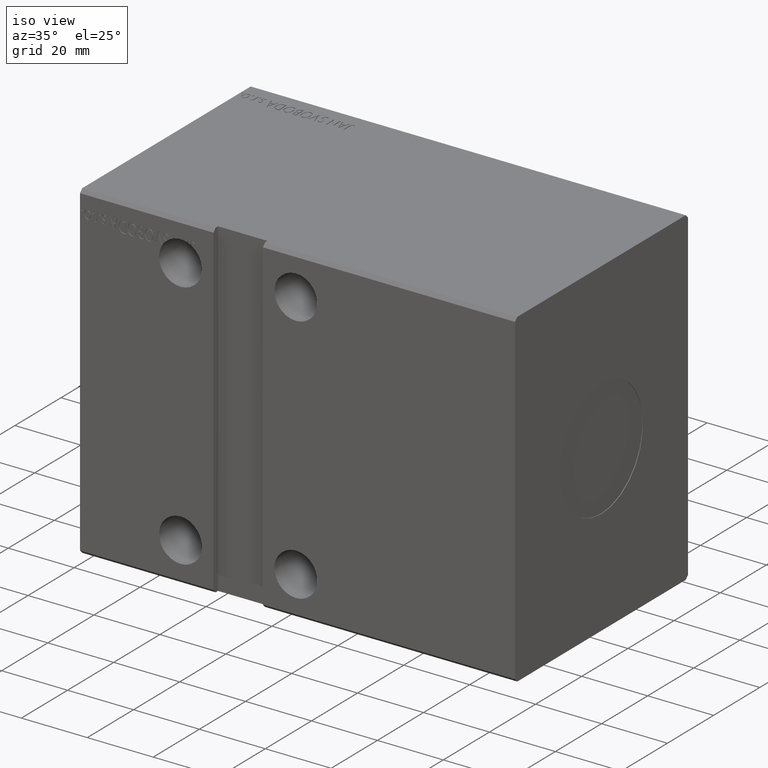
[diagram: clean part render]
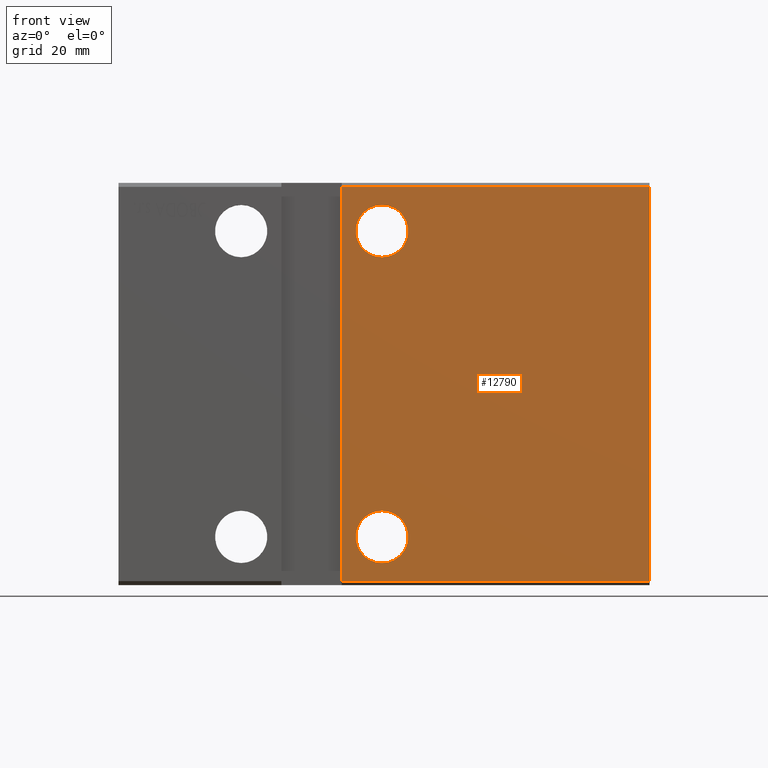
[diagram: tour spotlight — one face highlighted and labeled with its STEP entity id]
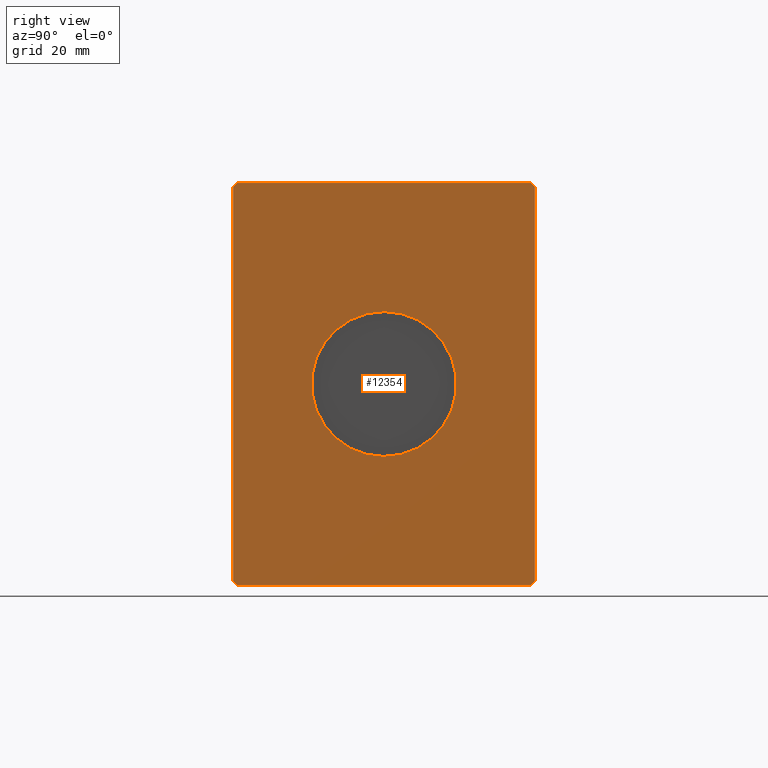
[diagram: tour spotlight — one face highlighted and labeled with its STEP entity id]
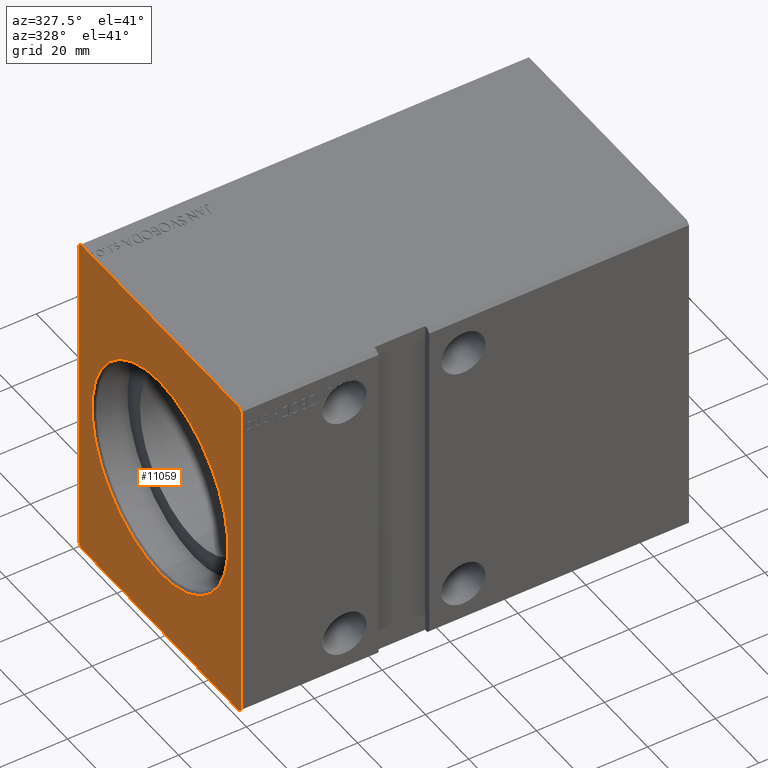
[diagram: tour spotlight — one face highlighted and labeled with its STEP entity id]
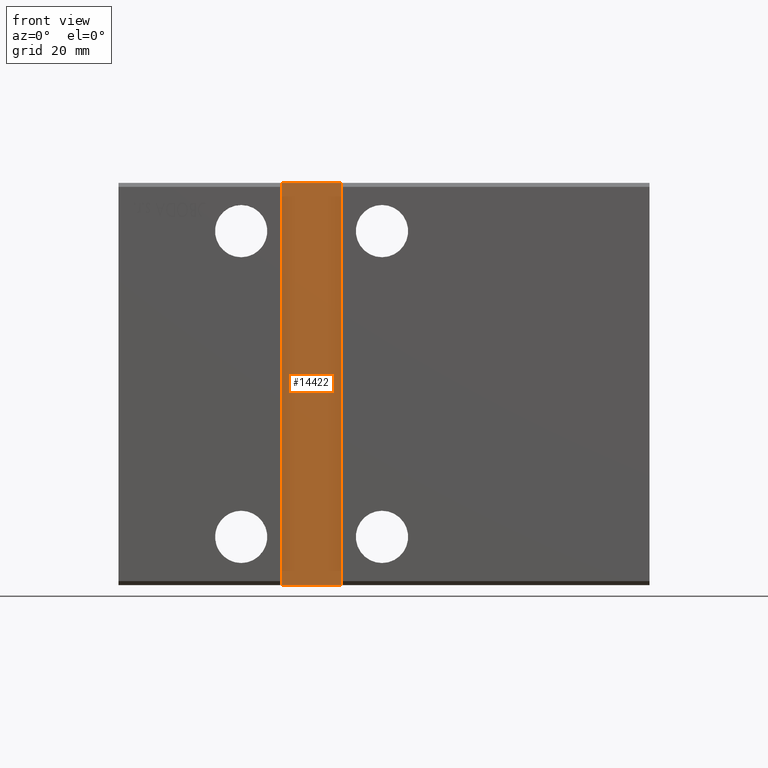
[diagram: tour spotlight — one face highlighted and labeled with its STEP entity id]
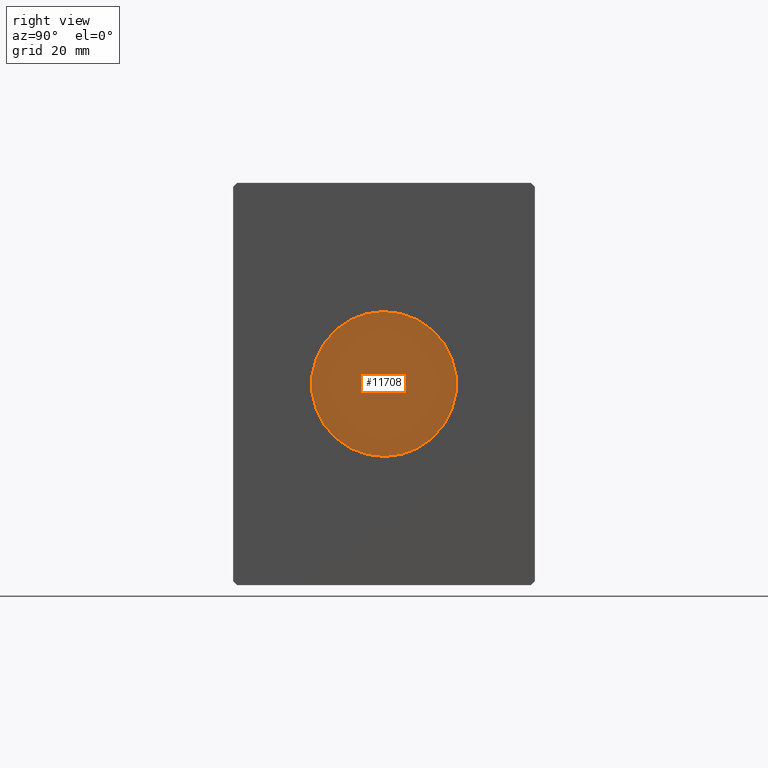
[diagram: tour spotlight — one face highlighted and labeled with its STEP entity id]
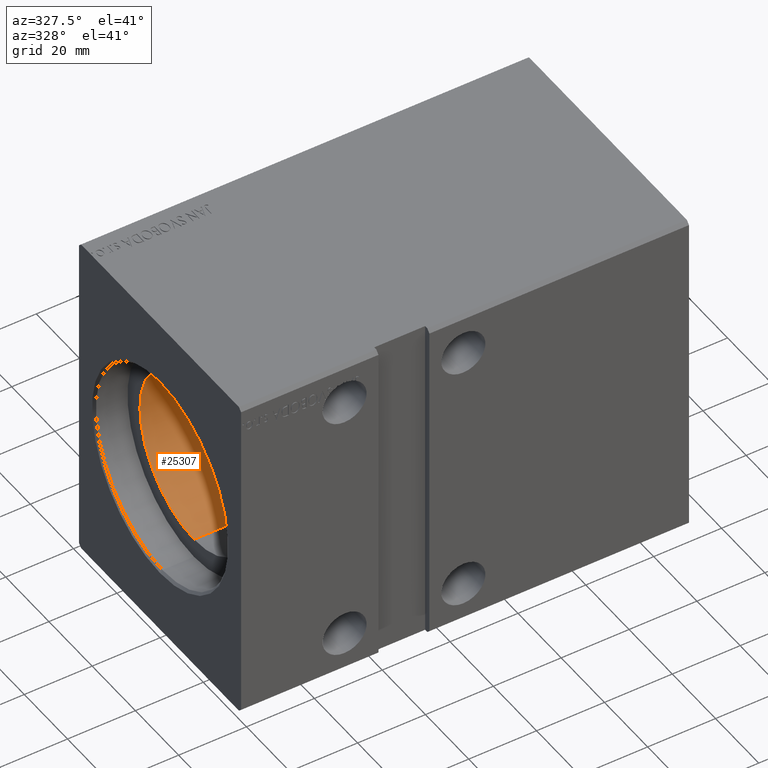
[diagram: tour spotlight — one face highlighted and labeled with its STEP entity id]
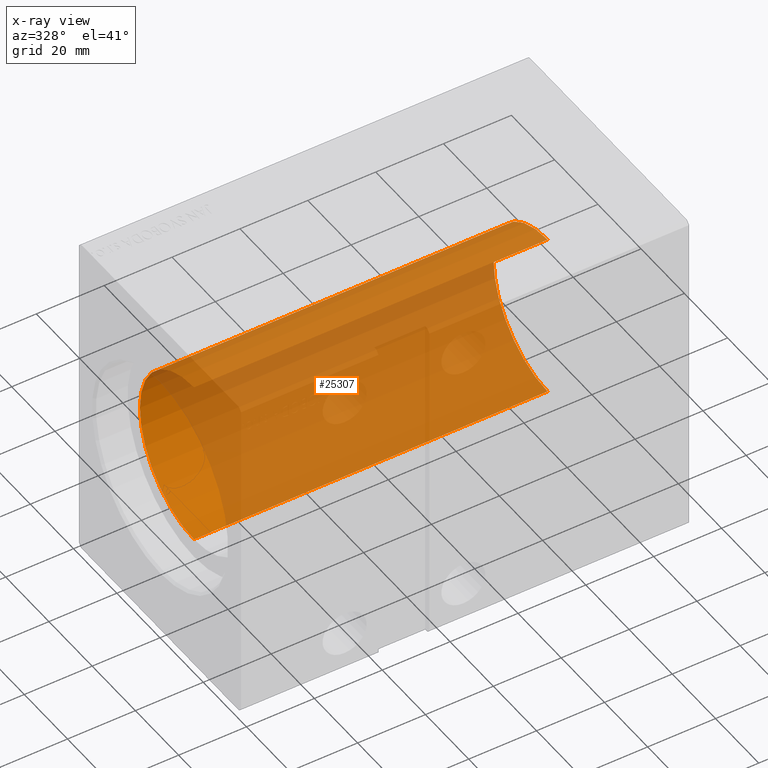
[diagram: x-ray of the same camera — body ghosted, this tour face saturated]
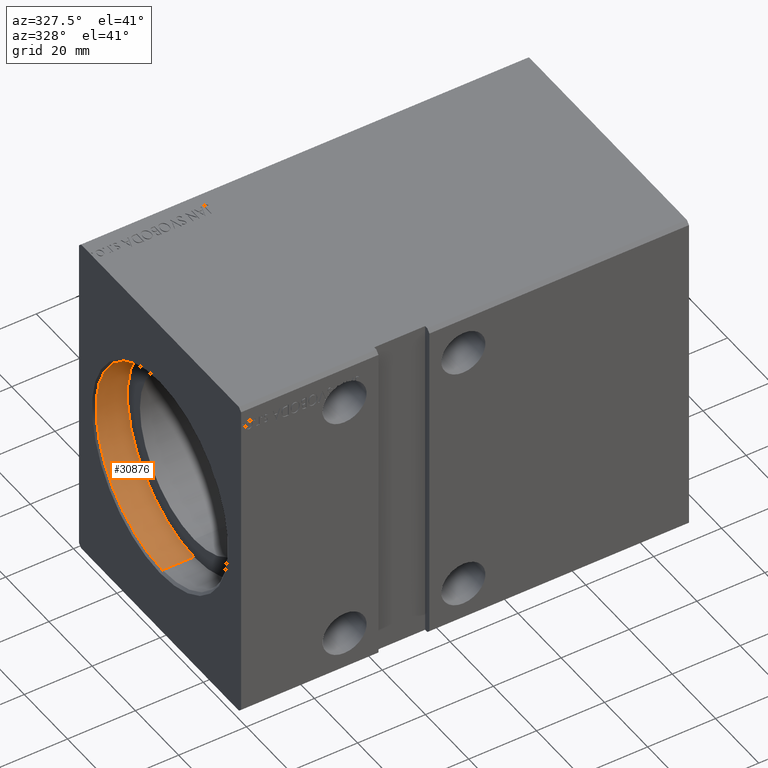
[diagram: tour spotlight — one face highlighted and labeled with its STEP entity id]
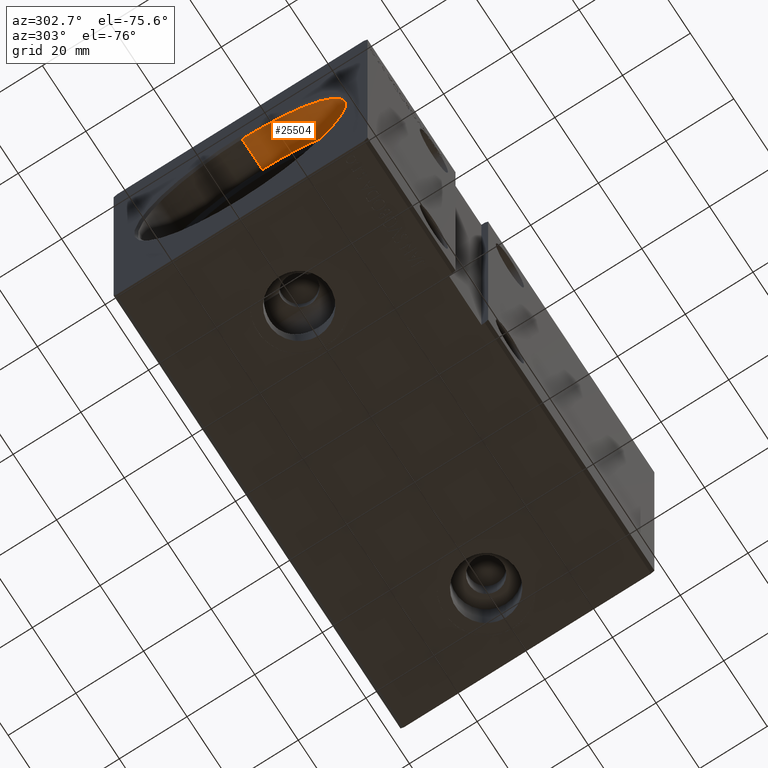
[diagram: tour spotlight — one face highlighted and labeled with its STEP entity id]
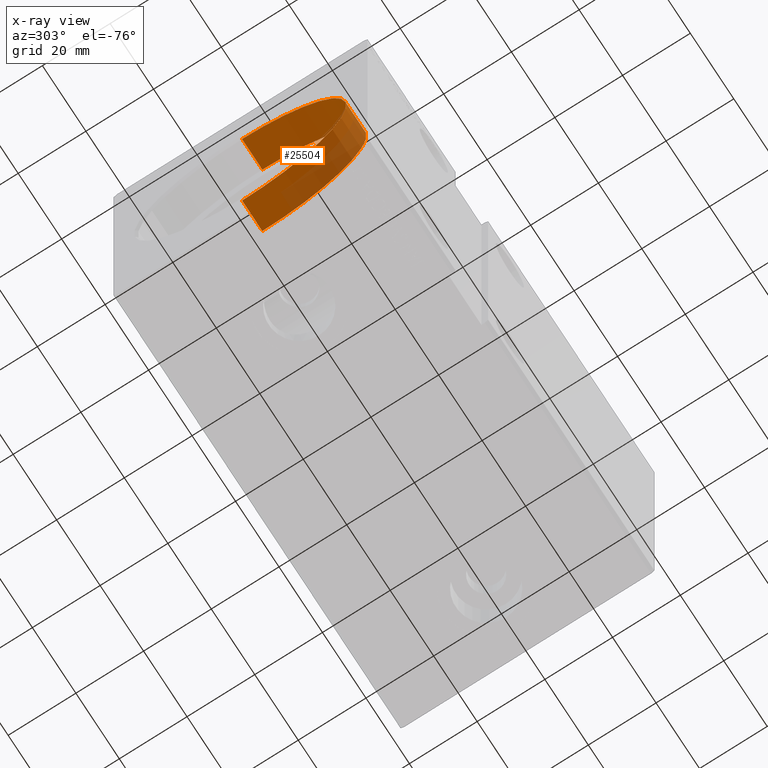
[diagram: x-ray of the same camera — body ghosted, this tour face saturated]
A machine part: a face-by-face anatomy tour. The part has 776 B-rep faces; the first image is the clean iso view, then the 8 largest visible faces are spotlighted one at a time (largest first), each with its STEP entity span.

Face 1 — front view, entity #12790. In plain terms, the highlighted planar face has unit normal (-0, 1, 0).
Definition (entity closure, byte-faithful):
#481 = EDGE_LOOP ( 'NONE', ( #11995, #37718 ) ) ;
#935 = CARTESIAN_POINT ( 'NONE',  ( 65.50000000000000000, -37.50000000000001421, 44.50000000000000000 ) ) ;
#1256 = VERTEX_POINT ( 'NONE', #9411 ) ;
#1307 = VECTOR ( 'NONE', #38826, 1000.000000000000000 ) ;
#1609 = CARTESIAN_POINT ( 'NONE',  ( 65.50000000000001421, -37.50000000000001421, -44.50000000000000000 ) ) ;
#2291 = VERTEX_POINT ( 'NONE', #8137 ) ;
#3689 = CIRCLE ( 'NONE', #18901, 6.499999999999999112 ) ;
#4011 = EDGE_CURVE ( 'NONE', #39150, #32558, #9631, .T. ) ;
#4369 = EDGE_CURVE ( 'NONE', #2291, #1256, #40959, .T. ) ;
#4889 = EDGE_CURVE ( 'NONE', #27155, #14294, #3689, .T. ) ;
#5793 = DIRECTION ( 'NONE',  ( 0.000000000000000000, 0.000000000000000000, 1.000000000000000000 ) ) ;
#6053 = DIRECTION ( 'NONE',  ( 0.000000000000000000, -0.000000000000000000, 1.000000000000000000 ) ) ;
#7204 = AXIS2_PLACEMENT_3D ( 'NONE', #13063, #40883, #6053 ) ;
#7806 = CIRCLE ( 'NONE', #32976, 6.499999999999999112 ) ;
#8137 = CARTESIAN_POINT ( 'NONE',  ( 55.50000000000000711, -37.50000000000001421, -48.99999999999997158 ) ) ;
#9411 = CARTESIAN_POINT ( 'NONE',  ( 55.50000000000000000, -37.50000000000001421, 48.99999999999998579 ) ) ;
#9631 = CIRCLE ( 'NONE', #34796, 6.499999999999999112 ) ;
#11995 = ORIENTED_EDGE ( 'NONE', *, *, #19115, .F. ) ;
#12395 = VERTEX_POINT ( 'NONE', #34147 ) ;
#12460 = FACE_OUTER_BOUND ( 'NONE', #18826, .T. ) ;
#12533 = CIRCLE ( 'NONE', #20496, 6.499999999999999112 ) ;
#12790 = ADVANCED_FACE ( 'NONE', ( #37985, #12460, #34458 ), #25117, .F. ) ;
#12862 = ORIENTED_EDGE ( 'NONE', *, *, #4011, .T. ) ;
#13063 = CARTESIAN_POINT ( 'NONE',  ( 132.0000000000000000, -37.50000000000001421, 48.99999999999998579 ) ) ;
#13825 = EDGE_LOOP ( 'NONE', ( #33306, #12862 ) ) ;
#14294 = VERTEX_POINT ( 'NONE', #34785 ) ;
#14399 = VECTOR ( 'NONE', #18335, 1000.000000000000000 ) ;
#14682 = EDGE_CURVE ( 'NONE', #12395, #1256, #33410, .T. ) ;
#14792 = EDGE_CURVE ( 'NONE', #32558, #39150, #12533, .T. ) ;
#15147 = CARTESIAN_POINT ( 'NONE',  ( 65.50000000000001421, -37.50000000000001421, -38.00000000000000000 ) ) ;
#15834 = ORIENTED_EDGE ( 'NONE', *, *, #38850, .F. ) ;
#15895 = DIRECTION ( 'NONE',  ( 0.000000000000000000, 0.000000000000000000, 1.000000000000000000 ) ) ;
#17148 = VERTEX_POINT ( 'NONE', #19653 ) ;
#18335 = DIRECTION ( 'NONE',  ( 0.000000000000000000, 0.000000000000000000, -1.000000000000000000 ) ) ;
#18599 = CARTESIAN_POINT ( 'NONE',  ( 65.50000000000000000, -37.50000000000001421, 38.00000000000000000 ) ) ;
#18693 = EDGE_CURVE ( 'NONE', #12395, #17148, #31190, .T. ) ;
#18826 = EDGE_LOOP ( 'NONE', ( #20230, #36224, #15834, #22325 ) ) ;
#18901 = AXIS2_PLACEMENT_3D ( 'NONE', #18599, #27729, #15895 ) ;
#19115 = EDGE_CURVE ( 'NONE', #14294, #27155, #7806, .T. ) ;
#19653 = CARTESIAN_POINT ( 'NONE',  ( 132.0000000000000000, -37.50000000000001421, -49.00000000000000000 ) ) ;
#20230 = ORIENTED_EDGE ( 'NONE', *, *, #14682, .T. ) ;
#20496 = AXIS2_PLACEMENT_3D ( 'NONE', #15147, #40461, #24068 ) ;
#22325 = ORIENTED_EDGE ( 'NONE', *, *, #18693, .F. ) ;
#24068 = DIRECTION ( 'NONE',  ( 0.000000000000000000, 0.000000000000000000, 1.000000000000000000 ) ) ;
#24188 = VECTOR ( 'NONE', #29131, 1000.000000000000000 ) ;
#24368 = CARTESIAN_POINT ( 'NONE',  ( 65.50000000000001421, -37.50000000000001421, -31.50000000000000000 ) ) ;
#24679 = DIRECTION ( 'NONE',  ( 0.000000000000000000, 0.000000000000000000, 1.000000000000000000 ) ) ;
#25117 = PLANE ( 'NONE',  #7204 ) ;
#25197 = CARTESIAN_POINT ( 'NONE',  ( 55.50000000000000000, -37.50000000000001421, 49.99999999999998579 ) ) ;
#26167 = CARTESIAN_POINT ( 'NONE',  ( 132.0000000000000000, -37.50000000000001421, 48.99999999999998579 ) ) ;
#27155 = VERTEX_POINT ( 'NONE', #935 ) ;
#27176 = LINE ( 'NONE', #30487, #39259 ) ;
#27664 = CARTESIAN_POINT ( 'NONE',  ( 132.0000000000000000, -37.50000000000001421, 48.99999999999998579 ) ) ;
#27729 = DIRECTION ( 'NONE',  ( 0.000000000000000000, -1.000000000000000000, -0.000000000000000000 ) ) ;
#29131 = DIRECTION ( 'NONE',  ( -6.938893903907229610E-17, -0.000000000000000000, 1.000000000000000000 ) ) ;
#30278 = DIRECTION ( 'NONE',  ( -0.000000000000000000, 1.000000000000000000, 0.000000000000000000 ) ) ;
#30487 = CARTESIAN_POINT ( 'NONE',  ( 132.0000000000000000, -37.50000000000001421, -49.00000000000000000 ) ) ;
#31190 = LINE ( 'NONE', #27664, #14399 ) ;
#32558 = VERTEX_POINT ( 'NONE', #1609 ) ;
#32976 = AXIS2_PLACEMENT_3D ( 'NONE', #40220, #34202, #5793 ) ;
#33306 = ORIENTED_EDGE ( 'NONE', *, *, #14792, .T. ) ;
#33410 = LINE ( 'NONE', #26167, #1307 ) ;
#34147 = CARTESIAN_POINT ( 'NONE',  ( 132.0000000000000000, -37.50000000000001421, 48.99999999999998579 ) ) ;
#34202 = DIRECTION ( 'NONE',  ( 0.000000000000000000, -1.000000000000000000, -0.000000000000000000 ) ) ;
#34458 = FACE_BOUND ( 'NONE', #481, .T. ) ;
#34785 = CARTESIAN_POINT ( 'NONE',  ( 65.50000000000000000, -37.50000000000001421, 31.50000000000000000 ) ) ;
#34796 = AXIS2_PLACEMENT_3D ( 'NONE', #37147, #30278, #24679 ) ;
#36224 = ORIENTED_EDGE ( 'NONE', *, *, #4369, .F. ) ;
#37147 = CARTESIAN_POINT ( 'NONE',  ( 65.50000000000001421, -37.50000000000001421, -38.00000000000000000 ) ) ;
#37718 = ORIENTED_EDGE ( 'NONE', *, *, #4889, .F. ) ;
#37985 = FACE_BOUND ( 'NONE', #13825, .T. ) ;
#38826 = DIRECTION ( 'NONE',  ( -1.000000000000000000, -0.000000000000000000, -0.000000000000000000 ) ) ;
#38850 = EDGE_CURVE ( 'NONE', #17148, #2291, #27176, .T. ) ;
#39150 = VERTEX_POINT ( 'NONE', #24368 ) ;
#39259 = VECTOR ( 'NONE', #39820, 1000.000000000000000 ) ;
#39820 = DIRECTION ( 'NONE',  ( -1.000000000000000000, -0.000000000000000000, -0.000000000000000000 ) ) ;
#40220 = CARTESIAN_POINT ( 'NONE',  ( 65.50000000000000000, -37.50000000000001421, 38.00000000000000000 ) ) ;
#40461 = DIRECTION ( 'NONE',  ( -0.000000000000000000, 1.000000000000000000, 0.000000000000000000 ) ) ;
#40883 = DIRECTION ( 'NONE',  ( -0.000000000000000000, 1.000000000000000000, 0.000000000000000000 ) ) ;
#40959 = LINE ( 'NONE', #25197, #24188 ) ;

Face 2 — right view, entity #12354. In plain terms, the highlighted planar face has unit normal (1, 0, 0).
Definition (entity closure, byte-faithful):
#385 = ORIENTED_EDGE ( 'NONE', *, *, #18693, .T. ) ;
#932 = LINE ( 'NONE', #23302, #28825 ) ;
#939 = EDGE_LOOP ( 'NONE', ( #13505, #27650, #9183, #385, #9852, #3339, #38543, #7194 ) ) ;
#1098 = CARTESIAN_POINT ( 'NONE',  ( 132.0000000000000000, 2.204364238465235428E-15, 18.00000000000000000 ) ) ;
#1334 = DIRECTION ( 'NONE',  ( 0.000000000000000000, 0.7071067811865474617, 0.7071067811865474617 ) ) ;
#2204 = CARTESIAN_POINT ( 'NONE',  ( 132.0000000000000000, 37.50000000000000711, 49.00000000000000000 ) ) ;
#2496 = VERTEX_POINT ( 'NONE', #2204 ) ;
#3339 = ORIENTED_EDGE ( 'NONE', *, *, #14200, .T. ) ;
#3537 = EDGE_CURVE ( 'NONE', #15674, #12395, #932, .T. ) ;
#3726 = CARTESIAN_POINT ( 'NONE',  ( 132.0000000000000000, -36.50000000000000711, -50.00000000000000000 ) ) ;
#4156 = DIRECTION ( 'NONE',  ( 0.000000000000000000, 0.000000000000000000, -1.000000000000000000 ) ) ;
#4920 = DIRECTION ( 'NONE',  ( 1.000000000000000000, 0.000000000000000000, 0.000000000000000000 ) ) ;
#6071 = CARTESIAN_POINT ( 'NONE',  ( 132.0000000000000000, 0.000000000000000000, -18.00000000000000000 ) ) ;
#6256 = EDGE_CURVE ( 'NONE', #23862, #16827, #24104, .T. ) ;
#6289 = CARTESIAN_POINT ( 'NONE',  ( 132.0000000000000000, -36.50000000000001421, 49.99999999999998579 ) ) ;
#6444 = DIRECTION ( 'NONE',  ( 1.000000000000000000, 0.000000000000000000, 0.000000000000000000 ) ) ;
#7194 = ORIENTED_EDGE ( 'NONE', *, *, #31196, .T. ) ;
#8245 = CARTESIAN_POINT ( 'NONE',  ( 132.0000000000000000, -36.50000000000000711, -50.00000000000000000 ) ) ;
#8867 = DIRECTION ( 'NONE',  ( 0.000000000000000000, 1.000000000000000000, 0.000000000000000000 ) ) ;
#9183 = ORIENTED_EDGE ( 'NONE', *, *, #3537, .T. ) ;
#9765 = AXIS2_PLACEMENT_3D ( 'NONE', #31957, #6444, #4156 ) ;
#9852 = ORIENTED_EDGE ( 'NONE', *, *, #33087, .T. ) ;
#10645 = VECTOR ( 'NONE', #13715, 1000.000000000000114 ) ;
#10810 = VERTEX_POINT ( 'NONE', #1098 ) ;
#11100 = EDGE_CURVE ( 'NONE', #2496, #32567, #13261, .T. ) ;
#11796 = VECTOR ( 'NONE', #25927, 1000.000000000000114 ) ;
#12354 = ADVANCED_FACE ( 'NONE', ( #18187, #27521 ), #30210, .T. ) ;
#12395 = VERTEX_POINT ( 'NONE', #34147 ) ;
#13207 = VECTOR ( 'NONE', #8867, 1000.000000000000000 ) ;
#13261 = LINE ( 'NONE', #22812, #11796 ) ;
#13505 = ORIENTED_EDGE ( 'NONE', *, *, #11100, .T. ) ;
#13534 = DIRECTION ( 'NONE',  ( 0.000000000000000000, -1.000000000000000000, -1.901066822988281457E-16 ) ) ;
#13715 = DIRECTION ( 'NONE',  ( 0.000000000000000000, 0.7071067811865500152, -0.7071067811865451302 ) ) ;
#14200 = EDGE_CURVE ( 'NONE', #37825, #23862, #36884, .T. ) ;
#14399 = VECTOR ( 'NONE', #18335, 1000.000000000000000 ) ;
#14435 = DIRECTION ( 'NONE',  ( 0.000000000000000000, 0.000000000000000000, -1.000000000000000000 ) ) ;
#14443 = AXIS2_PLACEMENT_3D ( 'NONE', #14646, #4920, #14435 ) ;
#14646 = CARTESIAN_POINT ( 'NONE',  ( 132.0000000000000000, 0.000000000000000000, 0.000000000000000000 ) ) ;
#15049 = CARTESIAN_POINT ( 'NONE',  ( 132.0000000000000000, 36.50000000000000711, 50.00000000000000000 ) ) ;
#15550 = DIRECTION ( 'NONE',  ( 0.000000000000000000, 0.000000000000000000, 1.000000000000000000 ) ) ;
#15674 = VERTEX_POINT ( 'NONE', #6289 ) ;
#16827 = VERTEX_POINT ( 'NONE', #22616 ) ;
#16901 = EDGE_CURVE ( 'NONE', #10810, #23213, #32279, .T. ) ;
#17148 = VERTEX_POINT ( 'NONE', #19653 ) ;
#17909 = VECTOR ( 'NONE', #15550, 1000.000000000000000 ) ;
#18049 = ORIENTED_EDGE ( 'NONE', *, *, #29981, .F. ) ;
#18187 = FACE_BOUND ( 'NONE', #20734, .T. ) ;
#18335 = DIRECTION ( 'NONE',  ( 0.000000000000000000, 0.000000000000000000, -1.000000000000000000 ) ) ;
#18693 = EDGE_CURVE ( 'NONE', #12395, #17148, #31190, .T. ) ;
#19356 = CARTESIAN_POINT ( 'NONE',  ( 132.0000000000000000, -37.50000000000001421, -49.00000000000000000 ) ) ;
#19653 = CARTESIAN_POINT ( 'NONE',  ( 132.0000000000000000, -37.50000000000001421, -49.00000000000000000 ) ) ;
#20734 = EDGE_LOOP ( 'NONE', ( #18049, #28648 ) ) ;
#22616 = CARTESIAN_POINT ( 'NONE',  ( 132.0000000000000000, 37.50000000000000711, -49.00000000000000000 ) ) ;
#22812 = CARTESIAN_POINT ( 'NONE',  ( 132.0000000000000000, 37.50000000000000711, 49.00000000000000000 ) ) ;
#23213 = VERTEX_POINT ( 'NONE', #6071 ) ;
#23302 = CARTESIAN_POINT ( 'NONE',  ( 132.0000000000000000, -36.50000000000001421, 49.99999999999998579 ) ) ;
#23862 = VERTEX_POINT ( 'NONE', #34441 ) ;
#24104 = LINE ( 'NONE', #29725, #25862 ) ;
#25305 = LINE ( 'NONE', #31733, #17909 ) ;
#25862 = VECTOR ( 'NONE', #1334, 1000.000000000000114 ) ;
#25927 = DIRECTION ( 'NONE',  ( 0.000000000000000000, -0.7071067811865474617, 0.7071067811865474617 ) ) ;
#27521 = FACE_OUTER_BOUND ( 'NONE', #939, .T. ) ;
#27650 = ORIENTED_EDGE ( 'NONE', *, *, #36716, .T. ) ;
#27664 = CARTESIAN_POINT ( 'NONE',  ( 132.0000000000000000, -37.50000000000001421, 48.99999999999998579 ) ) ;
#28648 = ORIENTED_EDGE ( 'NONE', *, *, #16901, .F. ) ;
#28825 = VECTOR ( 'NONE', #39076, 1000.000000000000114 ) ;
#29132 = CIRCLE ( 'NONE', #40416, 18.00000000000000000 ) ;
#29725 = CARTESIAN_POINT ( 'NONE',  ( 132.0000000000000000, 36.50000000000000711, -50.00000000000000000 ) ) ;
#29981 = EDGE_CURVE ( 'NONE', #23213, #10810, #29132, .T. ) ;
#30210 = PLANE ( 'NONE',  #14443 ) ;
#30575 = VECTOR ( 'NONE', #13534, 1000.000000000000000 ) ;
#30844 = DIRECTION ( 'NONE',  ( 1.000000000000000000, 0.000000000000000000, 0.000000000000000000 ) ) ;
#31190 = LINE ( 'NONE', #27664, #14399 ) ;
#31196 = EDGE_CURVE ( 'NONE', #16827, #2496, #25305, .T. ) ;
#31261 = DIRECTION ( 'NONE',  ( 0.000000000000000000, 0.000000000000000000, -1.000000000000000000 ) ) ;
#31733 = CARTESIAN_POINT ( 'NONE',  ( 132.0000000000000000, 37.50000000000000711, -49.00000000000000000 ) ) ;
#31957 = CARTESIAN_POINT ( 'NONE',  ( 132.0000000000000000, 0.000000000000000000, 0.000000000000000000 ) ) ;
#32279 = CIRCLE ( 'NONE', #9765, 18.00000000000000000 ) ;
#32407 = LINE ( 'NONE', #19356, #10645 ) ;
#32567 = VERTEX_POINT ( 'NONE', #15049 ) ;
#33087 = EDGE_CURVE ( 'NONE', #17148, #37825, #32407, .T. ) ;
#34147 = CARTESIAN_POINT ( 'NONE',  ( 132.0000000000000000, -37.50000000000001421, 48.99999999999998579 ) ) ;
#34441 = CARTESIAN_POINT ( 'NONE',  ( 132.0000000000000000, 36.50000000000000711, -50.00000000000000000 ) ) ;
#36716 = EDGE_CURVE ( 'NONE', #32567, #15674, #39662, .T. ) ;
#36884 = LINE ( 'NONE', #8245, #13207 ) ;
#37490 = CARTESIAN_POINT ( 'NONE',  ( 132.0000000000000000, 0.000000000000000000, 0.000000000000000000 ) ) ;
#37825 = VERTEX_POINT ( 'NONE', #3726 ) ;
#38543 = ORIENTED_EDGE ( 'NONE', *, *, #6256, .T. ) ;
#38856 = CARTESIAN_POINT ( 'NONE',  ( 132.0000000000000000, 36.50000000000000711, 50.00000000000000000 ) ) ;
#39076 = DIRECTION ( 'NONE',  ( 0.000000000000000000, -0.7071067811865474617, -0.7071067811865474617 ) ) ;
#39662 = LINE ( 'NONE', #38856, #30575 ) ;
#40416 = AXIS2_PLACEMENT_3D ( 'NONE', #37490, #30844, #31261 ) ;

Face 3 — auxiliary view, entity #11059. In plain terms, the highlighted planar face has unit normal (1, 0, 0).
Definition (entity closure, byte-faithful):
#23 = VERTEX_POINT ( 'NONE', #19361 ) ;
#111 = LINE ( 'NONE', #9619, #25500 ) ;
#239 = FACE_BOUND ( 'NONE', #8836, .T. ) ;
#423 = CARTESIAN_POINT ( 'NONE',  ( 0.000000000000000000, 36.50000000000000711, 50.00000000000000000 ) ) ;
#623 = CARTESIAN_POINT ( 'NONE',  ( 0.000000000000000000, 37.50000000000000711, 49.00000000000000000 ) ) ;
#1092 = VERTEX_POINT ( 'NONE', #7760 ) ;
#1500 = AXIS2_PLACEMENT_3D ( 'NONE', #28621, #15961, #38159 ) ;
#1864 = DIRECTION ( 'NONE',  ( 1.000000000000000000, 0.000000000000000000, 0.000000000000000000 ) ) ;
#2292 = LINE ( 'NONE', #11588, #17775 ) ;
#2702 = EDGE_CURVE ( 'NONE', #1092, #21179, #111, .T. ) ;
#3629 = CARTESIAN_POINT ( 'NONE',  ( 0.000000000000000000, 37.50000000000000711, -49.00000000000000000 ) ) ;
#4035 = DIRECTION ( 'NONE',  ( 0.000000000000000000, 0.000000000000000000, 1.000000000000000000 ) ) ;
#4719 = ORIENTED_EDGE ( 'NONE', *, *, #39216, .F. ) ;
#4743 = VECTOR ( 'NONE', #35226, 1000.000000000000114 ) ;
#6445 = DIRECTION ( 'NONE',  ( 0.000000000000000000, 1.000000000000000000, 0.000000000000000000 ) ) ;
#6670 = ORIENTED_EDGE ( 'NONE', *, *, #12067, .F. ) ;
#7139 = AXIS2_PLACEMENT_3D ( 'NONE', #17406, #1864, #26944 ) ;
#7760 = CARTESIAN_POINT ( 'NONE',  ( 0.000000000000000000, -37.50000000000001421, -49.00000000000000000 ) ) ;
#8080 = VERTEX_POINT ( 'NONE', #19568 ) ;
#8585 = CARTESIAN_POINT ( 'NONE',  ( 0.000000000000000000, -36.50000000000000711, -50.00000000000000000 ) ) ;
#8836 = EDGE_LOOP ( 'NONE', ( #24918, #25359 ) ) ;
#8961 = DIRECTION ( 'NONE',  ( 0.000000000000000000, -0.7071067811865474617, -0.7071067811865474617 ) ) ;
#9165 = CARTESIAN_POINT ( 'NONE',  ( 0.000000000000000000, -36.50000000000001421, 49.99999999999998579 ) ) ;
#9619 = CARTESIAN_POINT ( 'NONE',  ( 0.000000000000000000, -37.50000000000001421, -49.00000000000000000 ) ) ;
#10326 = DIRECTION ( 'NONE',  ( 0.000000000000000000, -0.7071067811865474617, 0.7071067811865474617 ) ) ;
#10746 = LINE ( 'NONE', #623, #35289 ) ;
#11059 = ADVANCED_FACE ( 'NONE', ( #239, #40869 ), #31955, .F. ) ;
#11172 = VECTOR ( 'NONE', #32545, 1000.000000000000000 ) ;
#11411 = CIRCLE ( 'NONE', #1500, 31.45000000000003482 ) ;
#11588 = CARTESIAN_POINT ( 'NONE',  ( 0.000000000000000000, -37.50000000000001421, 48.99999999999998579 ) ) ;
#11858 = CARTESIAN_POINT ( 'NONE',  ( 0.000000000000000000, -37.50000000000001421, 48.99999999999998579 ) ) ;
#12067 = EDGE_CURVE ( 'NONE', #12706, #1092, #2292, .T. ) ;
#12443 = DIRECTION ( 'NONE',  ( 0.000000000000000000, 0.000000000000000000, -1.000000000000000000 ) ) ;
#12706 = VERTEX_POINT ( 'NONE', #11858 ) ;
#12739 = CARTESIAN_POINT ( 'NONE',  ( -1.084202172485504434E-16, 0.000000000000000000, 31.45000000000003482 ) ) ;
#13226 = LINE ( 'NONE', #26290, #4743 ) ;
#13350 = LINE ( 'NONE', #3629, #14075 ) ;
#14075 = VECTOR ( 'NONE', #4035, 1000.000000000000000 ) ;
#14850 = EDGE_LOOP ( 'NONE', ( #22215, #4719, #25264, #40682, #18635, #6670, #39334, #33731 ) ) ;
#15961 = DIRECTION ( 'NONE',  ( 1.000000000000000000, 0.000000000000000000, 0.000000000000000000 ) ) ;
#16365 = LINE ( 'NONE', #423, #11172 ) ;
#16870 = CARTESIAN_POINT ( 'NONE',  ( 0.000000000000000000, 36.50000000000000711, -50.00000000000000000 ) ) ;
#17406 = CARTESIAN_POINT ( 'NONE',  ( 0.000000000000000000, 0.000000000000000000, 0.000000000000000000 ) ) ;
#17775 = VECTOR ( 'NONE', #20726, 1000.000000000000000 ) ;
#18449 = EDGE_CURVE ( 'NONE', #23, #39246, #19719, .T. ) ;
#18635 = ORIENTED_EDGE ( 'NONE', *, *, #2702, .F. ) ;
#19361 = CARTESIAN_POINT ( 'NONE',  ( -1.084202172485504434E-16, 3.851514183318429560E-15, -31.45000000000003482 ) ) ;
#19568 = CARTESIAN_POINT ( 'NONE',  ( 0.000000000000000000, 37.50000000000000711, -49.00000000000000000 ) ) ;
#19719 = CIRCLE ( 'NONE', #7139, 31.45000000000003482 ) ;
#20038 = VERTEX_POINT ( 'NONE', #21153 ) ;
#20406 = AXIS2_PLACEMENT_3D ( 'NONE', #37364, #24698, #12443 ) ;
#20726 = DIRECTION ( 'NONE',  ( 0.000000000000000000, 0.000000000000000000, -1.000000000000000000 ) ) ;
#21153 = CARTESIAN_POINT ( 'NONE',  ( 0.000000000000000000, -36.50000000000001421, 49.99999999999998579 ) ) ;
#21179 = VERTEX_POINT ( 'NONE', #8585 ) ;
#21800 = CARTESIAN_POINT ( 'NONE',  ( 0.000000000000000000, 37.50000000000000711, 49.00000000000000000 ) ) ;
#22215 = ORIENTED_EDGE ( 'NONE', *, *, #39012, .F. ) ;
#22276 = DIRECTION ( 'NONE',  ( 0.000000000000000000, 0.7071067811865500152, -0.7071067811865451302 ) ) ;
#24471 = EDGE_CURVE ( 'NONE', #21179, #26278, #37976, .T. ) ;
#24698 = DIRECTION ( 'NONE',  ( 1.000000000000000000, 0.000000000000000000, 0.000000000000000000 ) ) ;
#24918 = ORIENTED_EDGE ( 'NONE', *, *, #37826, .T. ) ;
#25107 = CARTESIAN_POINT ( 'NONE',  ( 0.000000000000000000, -36.50000000000000711, -50.00000000000000000 ) ) ;
#25264 = ORIENTED_EDGE ( 'NONE', *, *, #34576, .F. ) ;
#25359 = ORIENTED_EDGE ( 'NONE', *, *, #18449, .T. ) ;
#25500 = VECTOR ( 'NONE', #22276, 1000.000000000000114 ) ;
#26278 = VERTEX_POINT ( 'NONE', #16870 ) ;
#26290 = CARTESIAN_POINT ( 'NONE',  ( 0.000000000000000000, 36.50000000000000711, -50.00000000000000000 ) ) ;
#26944 = DIRECTION ( 'NONE',  ( 0.000000000000000000, 0.000000000000000000, -1.000000000000000000 ) ) ;
#27324 = EDGE_CURVE ( 'NONE', #20038, #12706, #31169, .T. ) ;
#27709 = VECTOR ( 'NONE', #6445, 1000.000000000000000 ) ;
#27880 = EDGE_CURVE ( 'NONE', #32495, #20038, #16365, .T. ) ;
#28621 = CARTESIAN_POINT ( 'NONE',  ( 0.000000000000000000, 0.000000000000000000, 0.000000000000000000 ) ) ;
#28681 = VERTEX_POINT ( 'NONE', #21800 ) ;
#29592 = CARTESIAN_POINT ( 'NONE',  ( 0.000000000000000000, 36.50000000000000711, 50.00000000000000000 ) ) ;
#30396 = VECTOR ( 'NONE', #8961, 1000.000000000000114 ) ;
#31169 = LINE ( 'NONE', #9165, #30396 ) ;
#31955 = PLANE ( 'NONE',  #20406 ) ;
#32495 = VERTEX_POINT ( 'NONE', #29592 ) ;
#32545 = DIRECTION ( 'NONE',  ( 0.000000000000000000, -1.000000000000000000, -1.901066822988281457E-16 ) ) ;
#33731 = ORIENTED_EDGE ( 'NONE', *, *, #27880, .F. ) ;
#34576 = EDGE_CURVE ( 'NONE', #26278, #8080, #13226, .T. ) ;
#35226 = DIRECTION ( 'NONE',  ( 0.000000000000000000, 0.7071067811865474617, 0.7071067811865474617 ) ) ;
#35289 = VECTOR ( 'NONE', #10326, 1000.000000000000114 ) ;
#37364 = CARTESIAN_POINT ( 'NONE',  ( 0.000000000000000000, 0.000000000000000000, 0.000000000000000000 ) ) ;
#37826 = EDGE_CURVE ( 'NONE', #39246, #23, #11411, .T. ) ;
#37976 = LINE ( 'NONE', #25107, #27709 ) ;
#38159 = DIRECTION ( 'NONE',  ( 0.000000000000000000, 0.000000000000000000, -1.000000000000000000 ) ) ;
#39012 = EDGE_CURVE ( 'NONE', #28681, #32495, #10746, .T. ) ;
#39216 = EDGE_CURVE ( 'NONE', #8080, #28681, #13350, .T. ) ;
#39246 = VERTEX_POINT ( 'NONE', #12739 ) ;
#39334 = ORIENTED_EDGE ( 'NONE', *, *, #27324, .F. ) ;
#40682 = ORIENTED_EDGE ( 'NONE', *, *, #24471, .F. ) ;
#40869 = FACE_OUTER_BOUND ( 'NONE', #14850, .T. ) ;

Face 4 — front view, entity #14422. In plain terms, the highlighted planar face has unit normal (0, -1, 0).
Definition (entity closure, byte-faithful):
#988 = ORIENTED_EDGE ( 'NONE', *, *, #6550, .T. ) ;
#1364 = ORIENTED_EDGE ( 'NONE', *, *, #37568, .T. ) ;
#2532 = EDGE_LOOP ( 'NONE', ( #1364, #37005, #19842, #988 ) ) ;
#2972 = PLANE ( 'NONE',  #8563 ) ;
#4813 = VERTEX_POINT ( 'NONE', #13481 ) ;
#6062 = VECTOR ( 'NONE', #6387, 1000.000000000000000 ) ;
#6387 = DIRECTION ( 'NONE',  ( -1.000000000000000000, -0.000000000000000000, -0.000000000000000000 ) ) ;
#6550 = EDGE_CURVE ( 'NONE', #40616, #8895, #39415, .T. ) ;
#6886 = CARTESIAN_POINT ( 'NONE',  ( 55.50000000000000000, -35.50000000000001421, 49.99999999999998579 ) ) ;
#7294 = VECTOR ( 'NONE', #24054, 1000.000000000000000 ) ;
#8563 = AXIS2_PLACEMENT_3D ( 'NONE', #30395, #9172, #17964 ) ;
#8611 = DIRECTION ( 'NONE',  ( 2.081668171172169006E-16, 0.000000000000000000, -1.000000000000000000 ) ) ;
#8895 = VERTEX_POINT ( 'NONE', #13347 ) ;
#9172 = DIRECTION ( 'NONE',  ( 0.000000000000000000, -1.000000000000000000, 0.000000000000000000 ) ) ;
#9409 = VECTOR ( 'NONE', #22839, 1000.000000000000000 ) ;
#9488 = CARTESIAN_POINT ( 'NONE',  ( 40.50000000000000000, -35.50000000000001421, 49.99999999999998579 ) ) ;
#10063 = EDGE_CURVE ( 'NONE', #4813, #23982, #13408, .T. ) ;
#13347 = CARTESIAN_POINT ( 'NONE',  ( 55.50000000000000711, -35.50000000000001421, -50.00000000000000000 ) ) ;
#13389 = EDGE_CURVE ( 'NONE', #23982, #40616, #18158, .T. ) ;
#13408 = LINE ( 'NONE', #9488, #6062 ) ;
#13481 = CARTESIAN_POINT ( 'NONE',  ( 55.50000000000000000, -35.50000000000001421, 49.99999999999998579 ) ) ;
#14422 = ADVANCED_FACE ( 'NONE', ( #37048 ), #2972, .T. ) ;
#14718 = CARTESIAN_POINT ( 'NONE',  ( 40.50000000000002132, -35.50000000000001421, -50.00000000000000000 ) ) ;
#17964 = DIRECTION ( 'NONE',  ( 0.000000000000000000, -0.000000000000000000, -1.000000000000000000 ) ) ;
#18158 = LINE ( 'NONE', #27493, #40349 ) ;
#18632 = CARTESIAN_POINT ( 'NONE',  ( 40.50000000000000000, -35.50000000000001421, 49.99999999999998579 ) ) ;
#19842 = ORIENTED_EDGE ( 'NONE', *, *, #13389, .T. ) ;
#22839 = DIRECTION ( 'NONE',  ( -6.938893903907229610E-17, -0.000000000000000000, 1.000000000000000000 ) ) ;
#23982 = VERTEX_POINT ( 'NONE', #18632 ) ;
#24054 = DIRECTION ( 'NONE',  ( 1.000000000000000000, 0.000000000000000000, 0.000000000000000000 ) ) ;
#25919 = CARTESIAN_POINT ( 'NONE',  ( 40.50000000000002132, -35.50000000000001421, -50.00000000000000000 ) ) ;
#27493 = CARTESIAN_POINT ( 'NONE',  ( 40.50000000000000000, -35.50000000000001421, 49.99999999999998579 ) ) ;
#30395 = CARTESIAN_POINT ( 'NONE',  ( 0.000000000000000000, -35.50000000000001421, 1.101411730778925047E-16 ) ) ;
#34676 = LINE ( 'NONE', #6886, #9409 ) ;
#37005 = ORIENTED_EDGE ( 'NONE', *, *, #10063, .T. ) ;
#37048 = FACE_OUTER_BOUND ( 'NONE', #2532, .T. ) ;
#37568 = EDGE_CURVE ( 'NONE', #8895, #4813, #34676, .T. ) ;
#39415 = LINE ( 'NONE', #14718, #7294 ) ;
#40349 = VECTOR ( 'NONE', #8611, 1000.000000000000000 ) ;
#40616 = VERTEX_POINT ( 'NONE', #25919 ) ;

Face 5 — right view, entity #11708. In plain terms, the highlighted planar face has unit normal (1, 0, 0).
Definition (entity closure, byte-faithful):
#644 = EDGE_LOOP ( 'NONE', ( #21442, #36510 ) ) ;
#1742 = CARTESIAN_POINT ( 'NONE',  ( 131.8000000000000114, 0.000000000000000000, 0.000000000000000000 ) ) ;
#2347 = CIRCLE ( 'NONE', #32141, 18.00000000000000000 ) ;
#3581 = EDGE_CURVE ( 'NONE', #10782, #19247, #2347, .T. ) ;
#4206 = PLANE ( 'NONE',  #13765 ) ;
#5929 = AXIS2_PLACEMENT_3D ( 'NONE', #19921, #38601, #7063 ) ;
#6410 = CARTESIAN_POINT ( 'NONE',  ( 131.8000000000000114, 0.000000000000000000, -18.00000000000000000 ) ) ;
#6612 = CIRCLE ( 'NONE', #5929, 18.00000000000000000 ) ;
#7063 = DIRECTION ( 'NONE',  ( 0.000000000000000000, 0.000000000000000000, -1.000000000000000000 ) ) ;
#10427 = DIRECTION ( 'NONE',  ( 0.000000000000000000, 0.000000000000000000, -1.000000000000000000 ) ) ;
#10782 = VERTEX_POINT ( 'NONE', #31180 ) ;
#11708 = ADVANCED_FACE ( 'NONE', ( #19966 ), #4206, .T. ) ;
#13765 = AXIS2_PLACEMENT_3D ( 'NONE', #32613, #39249, #29494 ) ;
#19247 = VERTEX_POINT ( 'NONE', #6410 ) ;
#19921 = CARTESIAN_POINT ( 'NONE',  ( 131.8000000000000114, 0.000000000000000000, 0.000000000000000000 ) ) ;
#19966 = FACE_OUTER_BOUND ( 'NONE', #644, .T. ) ;
#21442 = ORIENTED_EDGE ( 'NONE', *, *, #28839, .T. ) ;
#28839 = EDGE_CURVE ( 'NONE', #19247, #10782, #6612, .T. ) ;
#29494 = DIRECTION ( 'NONE',  ( 0.000000000000000000, 0.000000000000000000, -1.000000000000000000 ) ) ;
#31180 = CARTESIAN_POINT ( 'NONE',  ( 131.8000000000000114, 2.204364238465235428E-15, 18.00000000000000000 ) ) ;
#32141 = AXIS2_PLACEMENT_3D ( 'NONE', #1742, #39474, #10427 ) ;
#32613 = CARTESIAN_POINT ( 'NONE',  ( 131.8000000000000114, 0.000000000000000000, 0.000000000000000000 ) ) ;
#36510 = ORIENTED_EDGE ( 'NONE', *, *, #3581, .T. ) ;
#38601 = DIRECTION ( 'NONE',  ( 1.000000000000000000, 0.000000000000000000, 0.000000000000000000 ) ) ;
#39249 = DIRECTION ( 'NONE',  ( 1.000000000000000000, 0.000000000000000000, 0.000000000000000000 ) ) ;
#39474 = DIRECTION ( 'NONE',  ( 1.000000000000000000, 0.000000000000000000, 0.000000000000000000 ) ) ;

Face 6 — auxiliary view, entity #25307. An x-ray twin of the same camera follows (body ghosted, this face saturated) — the face is partly hidden behind the body. In plain terms, the highlighted cylindrical surface (partial cylindrical patch) has radius 25 mm, axis along (-1, -0, -0).
Definition (entity closure, byte-faithful):
#807 = CARTESIAN_POINT ( 'NONE',  ( 114.2000000000000028, 0.000000000000000000, 25.00000000000000000 ) ) ;
#2409 = VECTOR ( 'NONE', #18962, 1000.000000000000000 ) ;
#2653 = EDGE_CURVE ( 'NONE', #27366, #36712, #2813, .T. ) ;
#2728 = AXIS2_PLACEMENT_3D ( 'NONE', #22332, #16309, #38305 ) ;
#2773 = CARTESIAN_POINT ( 'NONE',  ( 114.2000000000000028, 3.061616997868383043E-15, -25.00000000000000000 ) ) ;
#2813 = LINE ( 'NONE', #13131, #2409 ) ;
#3923 = DIRECTION ( 'NONE',  ( -1.000000000000000000, 0.000000000000000000, 0.000000000000000000 ) ) ;
#4221 = CARTESIAN_POINT ( 'NONE',  ( 9.999999999999994671, 3.061616997868383043E-15, -25.00000000000000000 ) ) ;
#6764 = FACE_OUTER_BOUND ( 'NONE', #19545, .T. ) ;
#6956 = ORIENTED_EDGE ( 'NONE', *, *, #2653, .F. ) ;
#7362 = CARTESIAN_POINT ( 'NONE',  ( 114.2000000000000028, 0.000000000000000000, 0.000000000000000000 ) ) ;
#7649 = ORIENTED_EDGE ( 'NONE', *, *, #12240, .T. ) ;
#8641 = EDGE_CURVE ( 'NONE', #21539, #36712, #20583, .T. ) ;
#10667 = CYLINDRICAL_SURFACE ( 'NONE', #28359, 25.00000000000000000 ) ;
#12240 = EDGE_CURVE ( 'NONE', #34989, #21539, #36037, .T. ) ;
#13131 = CARTESIAN_POINT ( 'NONE',  ( 114.2000000000000028, 3.061616997868383043E-15, -25.00000000000000000 ) ) ;
#14805 = CARTESIAN_POINT ( 'NONE',  ( 114.2000000000000028, 0.000000000000000000, 25.00000000000000000 ) ) ;
#16309 = DIRECTION ( 'NONE',  ( -1.000000000000000000, 0.000000000000000000, 0.000000000000000000 ) ) ;
#18962 = DIRECTION ( 'NONE',  ( -1.000000000000000000, -0.000000000000000000, -0.000000000000000000 ) ) ;
#19409 = DIRECTION ( 'NONE',  ( -1.000000000000000000, -0.000000000000000000, -0.000000000000000000 ) ) ;
#19545 = EDGE_LOOP ( 'NONE', ( #6956, #23118, #7649, #35674 ) ) ;
#20583 = CIRCLE ( 'NONE', #2728, 25.00000000000000000 ) ;
#21539 = VERTEX_POINT ( 'NONE', #22016 ) ;
#22016 = CARTESIAN_POINT ( 'NONE',  ( 9.999999999999994671, 0.000000000000000000, 25.00000000000000000 ) ) ;
#22332 = CARTESIAN_POINT ( 'NONE',  ( 9.999999999999994671, 0.000000000000000000, 0.000000000000000000 ) ) ;
#22706 = CIRCLE ( 'NONE', #26018, 25.00000000000000000 ) ;
#23118 = ORIENTED_EDGE ( 'NONE', *, *, #39086, .F. ) ;
#25307 = ADVANCED_FACE ( 'NONE', ( #6764 ), #10667, .F. ) ;
#26018 = AXIS2_PLACEMENT_3D ( 'NONE', #32331, #3923, #35854 ) ;
#26391 = VECTOR ( 'NONE', #32110, 1000.000000000000000 ) ;
#27366 = VERTEX_POINT ( 'NONE', #2773 ) ;
#28359 = AXIS2_PLACEMENT_3D ( 'NONE', #7362, #19409, #39102 ) ;
#32110 = DIRECTION ( 'NONE',  ( -1.000000000000000000, -0.000000000000000000, -0.000000000000000000 ) ) ;
#32331 = CARTESIAN_POINT ( 'NONE',  ( 114.2000000000000028, 0.000000000000000000, 0.000000000000000000 ) ) ;
#34989 = VERTEX_POINT ( 'NONE', #14805 ) ;
#35674 = ORIENTED_EDGE ( 'NONE', *, *, #8641, .T. ) ;
#35854 = DIRECTION ( 'NONE',  ( 0.000000000000000000, 0.000000000000000000, 1.000000000000000000 ) ) ;
#36037 = LINE ( 'NONE', #807, #26391 ) ;
#36712 = VERTEX_POINT ( 'NONE', #4221 ) ;
#38305 = DIRECTION ( 'NONE',  ( 0.000000000000000000, 0.000000000000000000, 1.000000000000000000 ) ) ;
#39086 = EDGE_CURVE ( 'NONE', #34989, #27366, #22706, .T. ) ;
#39102 = DIRECTION ( 'NONE',  ( 0.000000000000000000, 0.000000000000000000, 1.000000000000000000 ) ) ;

Face 7 — auxiliary view, entity #30876. In plain terms, the highlighted cylindrical surface (partial cylindrical patch) has radius 30.75 mm, axis along (-1, -0, -0).
Definition (entity closure, byte-faithful):
#1721 = DIRECTION ( 'NONE',  ( -1.000000000000000000, -0.000000000000000000, -0.000000000000000000 ) ) ;
#4108 = ORIENTED_EDGE ( 'NONE', *, *, #12578, .F. ) ;
#4166 = CARTESIAN_POINT ( 'NONE',  ( 10.00000000000000000, 0.000000000000000000, 30.75000000000000355 ) ) ;
#4551 = VECTOR ( 'NONE', #1721, 1000.000000000000000 ) ;
#4618 = CARTESIAN_POINT ( 'NONE',  ( 10.00000000000000000, 3.765788907378111328E-15, -30.75000000000000355 ) ) ;
#4985 = DIRECTION ( 'NONE',  ( -1.000000000000000000, -0.000000000000000000, -0.000000000000000000 ) ) ;
#5243 = CIRCLE ( 'NONE', #7216, 30.75000000000000355 ) ;
#5776 = VERTEX_POINT ( 'NONE', #18047 ) ;
#6651 = EDGE_LOOP ( 'NONE', ( #4108, #8565, #33063, #23318 ) ) ;
#7216 = AXIS2_PLACEMENT_3D ( 'NONE', #7734, #16266, #22700 ) ;
#7734 = CARTESIAN_POINT ( 'NONE',  ( 10.00000000000000000, 0.000000000000000000, 0.000000000000000000 ) ) ;
#8112 = VERTEX_POINT ( 'NONE', #18958 ) ;
#8301 = CARTESIAN_POINT ( 'NONE',  ( 0.7000000000000234923, 0.000000000000000000, 30.75000000000000355 ) ) ;
#8565 = ORIENTED_EDGE ( 'NONE', *, *, #27221, .F. ) ;
#8904 = CYLINDRICAL_SURFACE ( 'NONE', #21844, 30.75000000000000355 ) ;
#11605 = CARTESIAN_POINT ( 'NONE',  ( 10.00000000000000000, 3.765788907378111328E-15, -30.75000000000000355 ) ) ;
#12578 = EDGE_CURVE ( 'NONE', #30821, #5776, #36554, .T. ) ;
#13885 = DIRECTION ( 'NONE',  ( -1.000000000000000000, -0.000000000000000000, -0.000000000000000000 ) ) ;
#15885 = CIRCLE ( 'NONE', #39078, 30.75000000000000355 ) ;
#16266 = DIRECTION ( 'NONE',  ( -1.000000000000000000, 0.000000000000000000, 0.000000000000000000 ) ) ;
#16691 = EDGE_CURVE ( 'NONE', #40532, #5776, #15885, .T. ) ;
#17005 = LINE ( 'NONE', #4166, #37606 ) ;
#18047 = CARTESIAN_POINT ( 'NONE',  ( 0.7000000000000234923, 3.765788907378111328E-15, -30.75000000000000355 ) ) ;
#18958 = CARTESIAN_POINT ( 'NONE',  ( 10.00000000000000000, 0.000000000000000000, 30.75000000000000355 ) ) ;
#19065 = EDGE_CURVE ( 'NONE', #8112, #40532, #17005, .T. ) ;
#21844 = AXIS2_PLACEMENT_3D ( 'NONE', #26960, #4985, #28616 ) ;
#22665 = DIRECTION ( 'NONE',  ( -1.000000000000000000, 0.000000000000000000, 0.000000000000000000 ) ) ;
#22700 = DIRECTION ( 'NONE',  ( 0.000000000000000000, 0.000000000000000000, 1.000000000000000000 ) ) ;
#22862 = CARTESIAN_POINT ( 'NONE',  ( 0.7000000000000234923, 0.000000000000000000, 0.000000000000000000 ) ) ;
#23318 = ORIENTED_EDGE ( 'NONE', *, *, #16691, .T. ) ;
#26960 = CARTESIAN_POINT ( 'NONE',  ( 10.00000000000000000, 0.000000000000000000, 0.000000000000000000 ) ) ;
#27221 = EDGE_CURVE ( 'NONE', #8112, #30821, #5243, .T. ) ;
#28616 = DIRECTION ( 'NONE',  ( 0.000000000000000000, 0.000000000000000000, 1.000000000000000000 ) ) ;
#30821 = VERTEX_POINT ( 'NONE', #11605 ) ;
#30876 = ADVANCED_FACE ( 'NONE', ( #37340 ), #8904, .F. ) ;
#33063 = ORIENTED_EDGE ( 'NONE', *, *, #19065, .T. ) ;
#35316 = DIRECTION ( 'NONE',  ( 0.000000000000000000, 0.000000000000000000, -1.000000000000000000 ) ) ;
#36554 = LINE ( 'NONE', #4618, #4551 ) ;
#37340 = FACE_OUTER_BOUND ( 'NONE', #6651, .T. ) ;
#37606 = VECTOR ( 'NONE', #13885, 1000.000000000000000 ) ;
#39078 = AXIS2_PLACEMENT_3D ( 'NONE', #22862, #22665, #35316 ) ;
#40532 = VERTEX_POINT ( 'NONE', #8301 ) ;

Face 8 — auxiliary view, entity #25504. An x-ray twin of the same camera follows (body ghosted, this face saturated) — the face is partly hidden behind the body. In plain terms, the highlighted cylindrical surface (partial cylindrical patch) has radius 30.75 mm, axis along (-1, -0, -0).
Definition (entity closure, byte-faithful):
#1721 = DIRECTION ( 'NONE',  ( -1.000000000000000000, -0.000000000000000000, -0.000000000000000000 ) ) ;
#4166 = CARTESIAN_POINT ( 'NONE',  ( 10.00000000000000000, 0.000000000000000000, 30.75000000000000355 ) ) ;
#4551 = VECTOR ( 'NONE', #1721, 1000.000000000000000 ) ;
#4592 = DIRECTION ( 'NONE',  ( 0.000000000000000000, 0.000000000000000000, -1.000000000000000000 ) ) ;
#4618 = CARTESIAN_POINT ( 'NONE',  ( 10.00000000000000000, 3.765788907378111328E-15, -30.75000000000000355 ) ) ;
#4878 = DIRECTION ( 'NONE',  ( 0.000000000000000000, 0.000000000000000000, 1.000000000000000000 ) ) ;
#5776 = VERTEX_POINT ( 'NONE', #18047 ) ;
#8112 = VERTEX_POINT ( 'NONE', #18958 ) ;
#8301 = CARTESIAN_POINT ( 'NONE',  ( 0.7000000000000234923, 0.000000000000000000, 30.75000000000000355 ) ) ;
#9195 = AXIS2_PLACEMENT_3D ( 'NONE', #22845, #19736, #4592 ) ;
#9807 = DIRECTION ( 'NONE',  ( 0.000000000000000000, 0.000000000000000000, 1.000000000000000000 ) ) ;
#10052 = CIRCLE ( 'NONE', #11381, 30.75000000000000355 ) ;
#11381 = AXIS2_PLACEMENT_3D ( 'NONE', #36193, #33078, #4878 ) ;
#11605 = CARTESIAN_POINT ( 'NONE',  ( 10.00000000000000000, 3.765788907378111328E-15, -30.75000000000000355 ) ) ;
#12578 = EDGE_CURVE ( 'NONE', #30821, #5776, #36554, .T. ) ;
#12912 = FACE_OUTER_BOUND ( 'NONE', #28736, .T. ) ;
#13724 = CYLINDRICAL_SURFACE ( 'NONE', #24387, 30.75000000000000355 ) ;
#13840 = CIRCLE ( 'NONE', #9195, 30.75000000000000355 ) ;
#13885 = DIRECTION ( 'NONE',  ( -1.000000000000000000, -0.000000000000000000, -0.000000000000000000 ) ) ;
#17005 = LINE ( 'NONE', #4166, #37606 ) ;
#18047 = CARTESIAN_POINT ( 'NONE',  ( 0.7000000000000234923, 3.765788907378111328E-15, -30.75000000000000355 ) ) ;
#18958 = CARTESIAN_POINT ( 'NONE',  ( 10.00000000000000000, 0.000000000000000000, 30.75000000000000355 ) ) ;
#19065 = EDGE_CURVE ( 'NONE', #8112, #40532, #17005, .T. ) ;
#19736 = DIRECTION ( 'NONE',  ( -1.000000000000000000, 0.000000000000000000, 0.000000000000000000 ) ) ;
#20165 = ORIENTED_EDGE ( 'NONE', *, *, #12578, .T. ) ;
#22845 = CARTESIAN_POINT ( 'NONE',  ( 0.7000000000000234923, 0.000000000000000000, 0.000000000000000000 ) ) ;
#24387 = AXIS2_PLACEMENT_3D ( 'NONE', #38236, #32620, #9807 ) ;
#25504 = ADVANCED_FACE ( 'NONE', ( #12912 ), #13724, .F. ) ;
#27523 = EDGE_CURVE ( 'NONE', #5776, #40532, #13840, .T. ) ;
#28736 = EDGE_LOOP ( 'NONE', ( #40376, #20165, #40434, #40838 ) ) ;
#30821 = VERTEX_POINT ( 'NONE', #11605 ) ;
#32620 = DIRECTION ( 'NONE',  ( -1.000000000000000000, -0.000000000000000000, -0.000000000000000000 ) ) ;
#33078 = DIRECTION ( 'NONE',  ( -1.000000000000000000, 0.000000000000000000, 0.000000000000000000 ) ) ;
#36193 = CARTESIAN_POINT ( 'NONE',  ( 10.00000000000000000, 0.000000000000000000, 0.000000000000000000 ) ) ;
#36430 = EDGE_CURVE ( 'NONE', #30821, #8112, #10052, .T. ) ;
#36554 = LINE ( 'NONE', #4618, #4551 ) ;
#37606 = VECTOR ( 'NONE', #13885, 1000.000000000000000 ) ;
#38236 = CARTESIAN_POINT ( 'NONE',  ( 10.00000000000000000, 0.000000000000000000, 0.000000000000000000 ) ) ;
#40376 = ORIENTED_EDGE ( 'NONE', *, *, #36430, .F. ) ;
#40434 = ORIENTED_EDGE ( 'NONE', *, *, #27523, .T. ) ;
#40532 = VERTEX_POINT ( 'NONE', #8301 ) ;
#40838 = ORIENTED_EDGE ( 'NONE', *, *, #19065, .F. ) ;